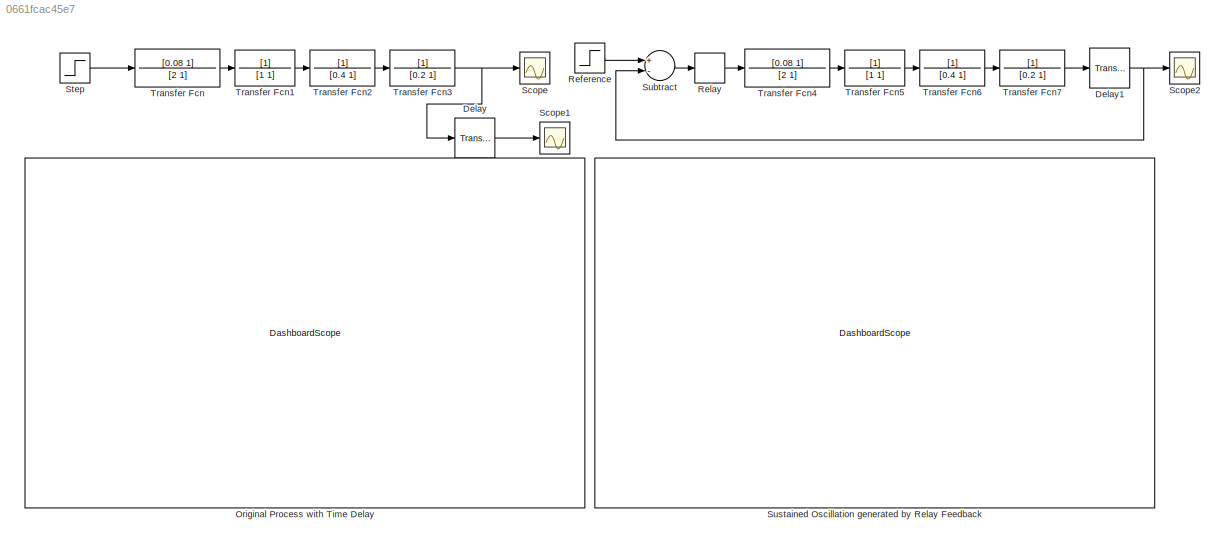
MODEL slx_0661fcac45e7
KIND model
CONFIG AbsTol = auto
CONFIG EnableMultiTasking = off
CONFIG FixedStep = auto
CONFIG MaxStep = auto
CONFIG MinStep = auto
CONFIG RelTol = 1e-3
CONFIG SampleTimeConstraint = Unconstrained
CONFIG Solver = VariableStepAuto
CONFIG SolverName = VariableStepAuto
CONFIG StartTime = 0.0
CONFIG StopTime = 50
BLOCK [TransportDelay] Delay
  DelayTime = 3
  Ports = [1, 1]
BLOCK [TransportDelay] Delay1
  DelayTime = 3
  Ports = [1, 1]
BLOCK [DashboardScope] Original Process with Time Delay
BLOCK [Step] Reference
  After = 0
  SampleTime = 0
BLOCK [Relay] Relay
  OffOutputValue = -0.01
  OnOutputValue = 0.01
BLOCK [Scope] Scope
  Floating = off
  NumInputPorts = 1
  Ports = [1]
  ScopeSpecificationString = Simulink.scopes.TimeScopeBlockCfg('CurrentConfiguration', extmgr.ConfigurationSet(extmgr.Configuration('Core','General UI',true),extmgr.Configuration('Core','Source UI',true),extmgr.Configuration('Sources','WiredSimulink',true),extmgr.Configuration('Visuals','Time Domain',true,'SerializedDisplays',{struct('MinYLimReal','-0.13615','MaxYLimReal','3.31595','YLabelReal','','MinYLimMag','0.00000','MaxY...<+1378ch>
BLOCK [Scope] Scope1
  Floating = off
  NumInputPorts = 1
  Ports = [1]
  ScopeSpecificationString = Simulink.scopes.TimeScopeBlockCfg('CurrentConfiguration', extmgr.ConfigurationSet(extmgr.Configuration('Core','General UI',true,'FigureColor',[0.905882352941176 0.905882352941176 0.905882352941176]),extmgr.Configuration('Core','Source UI',true),extmgr.Configuration('Sources','WiredSimulink',true,'DataLoggingVariableName','ScopeData1'),extmgr.Configuration('Visuals','Time Domain',true,'SerializedDi...<+1959ch>
BLOCK [Scope] Scope2
  Floating = off
  NumInputPorts = 1
  Ports = [1]
  ScopeSpecificationString = Simulink.scopes.TimeScopeBlockCfg('CurrentConfiguration', extmgr.ConfigurationSet(extmgr.Configuration('Core','General UI',true),extmgr.Configuration('Core','Source UI',true),extmgr.Configuration('Sources','WiredSimulink',true,'DataLoggingVariableName','ScopeData1'),extmgr.Configuration('Visuals','Time Domain',true,'SerializedDisplays',{struct('MinYLimReal','-0.95505','MaxYLimReal','0.95505','YLab...<+1390ch>
BLOCK [Step] Step
  SampleTime = 0
BLOCK [Sum] Subtract
  InputSameDT = off
  Inputs = +-
  OutDataTypeStr = Inherit: Inherit via internal rule
  Ports = [2, 1]
  SaturateOnIntegerOverflow = off
BLOCK [DashboardScope] Sustained Oscillation generated by Relay Feedback
BLOCK [TransferFcn] Transfer Fcn
  Denominator = [2 1]
  Numerator = [0.08 1]
BLOCK [TransferFcn] Transfer Fcn1
  Denominator = [1 1]
BLOCK [TransferFcn] Transfer Fcn2
  Denominator = [0.4 1]
BLOCK [TransferFcn] Transfer Fcn3
  Denominator = [0.2 1]
BLOCK [TransferFcn] Transfer Fcn4
  Denominator = [2 1]
  Numerator = [0.08 1]
BLOCK [TransferFcn] Transfer Fcn5
  Denominator = [1 1]
BLOCK [TransferFcn] Transfer Fcn6
  Denominator = [0.4 1]
BLOCK [TransferFcn] Transfer Fcn7
  Denominator = [0.2 1]
NET Delay1:1 -> Scope2:1, Subtract:2
LINE Delay:1 -> Scope1:1
LINE Reference:1 -> Subtract:1
LINE Relay:1 -> Transfer Fcn4:1
LINE Step:1 -> Transfer Fcn:1
LINE Subtract:1 -> Relay:1
LINE Transfer Fcn1:1 -> Transfer Fcn2:1
LINE Transfer Fcn2:1 -> Transfer Fcn3:1
NET Transfer Fcn3:1 -> Delay:1, Scope:1
LINE Transfer Fcn4:1 -> Transfer Fcn5:1
LINE Transfer Fcn5:1 -> Transfer Fcn6:1
LINE Transfer Fcn6:1 -> Transfer Fcn7:1
LINE Transfer Fcn7:1 -> Delay1:1
LINE Transfer Fcn:1 -> Transfer Fcn1:1
note: NET lines group one-source signal fan-out (src -> all destinations, sorted); 1:1 wires keep LINE
